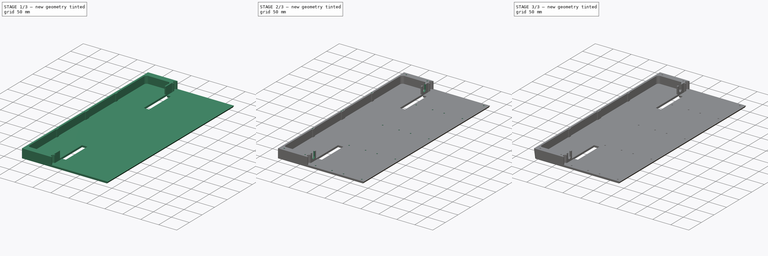
[diagram: build sequence overview — one tinted view per stage of 3, left to right]
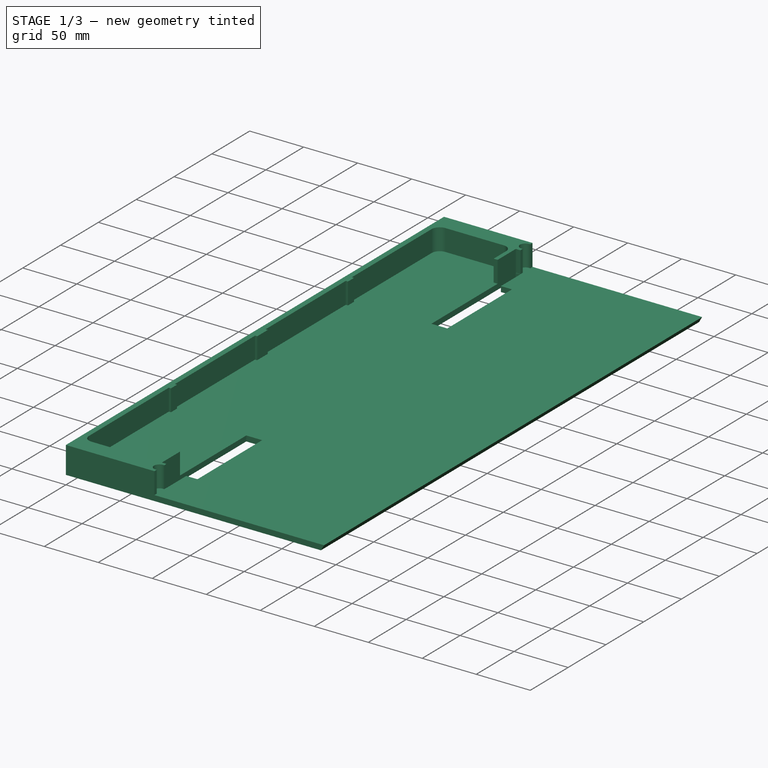
[diagram: stage 1 of 3 — iso view after this stage's code; geometry added in this stage tinted green]
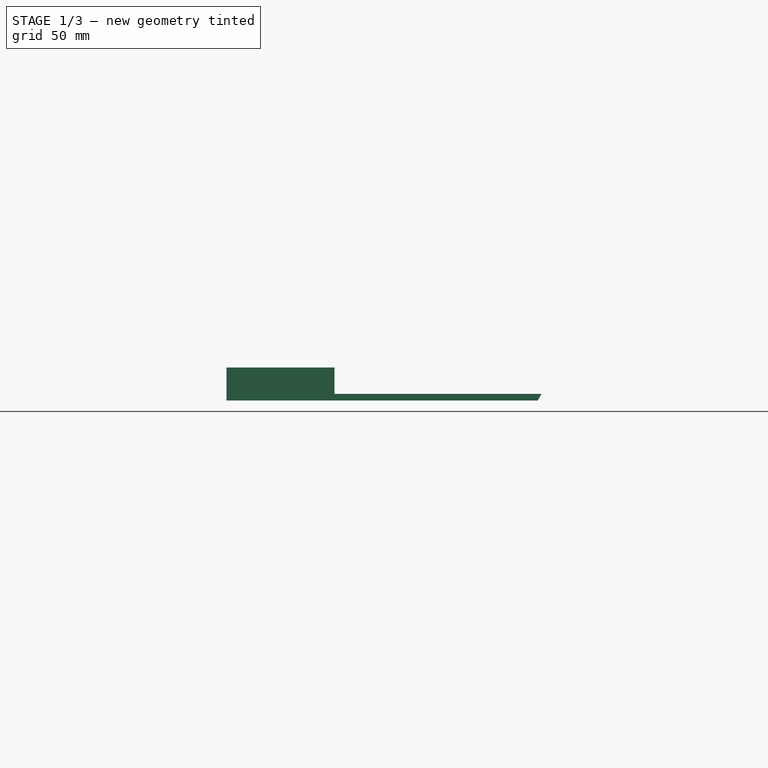
[diagram: stage 1 of 3 — front view after this stage's code; geometry added in this stage tinted green]
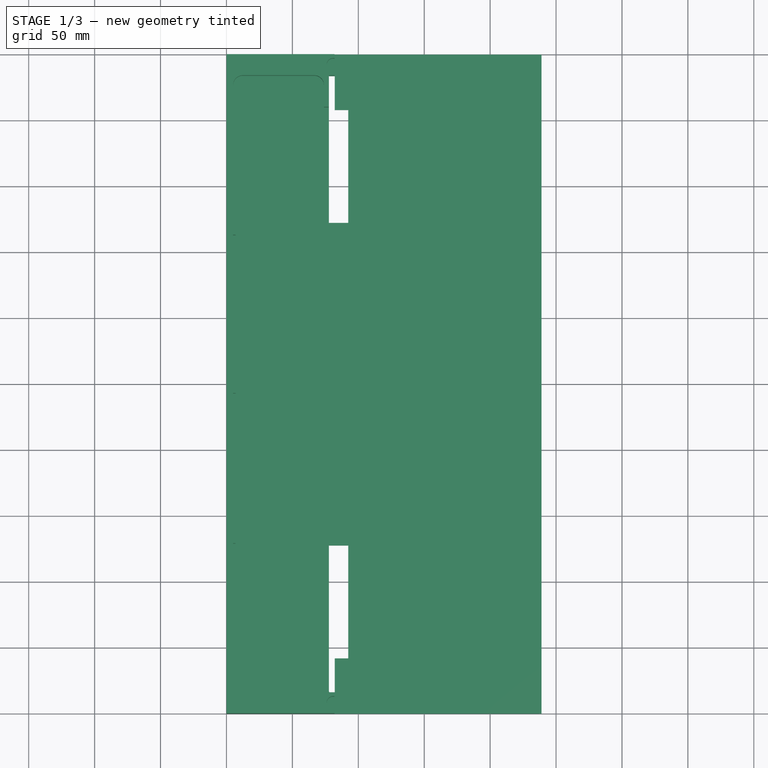
[diagram: stage 1 of 3 — top view after this stage's code; geometry added in this stage tinted green]
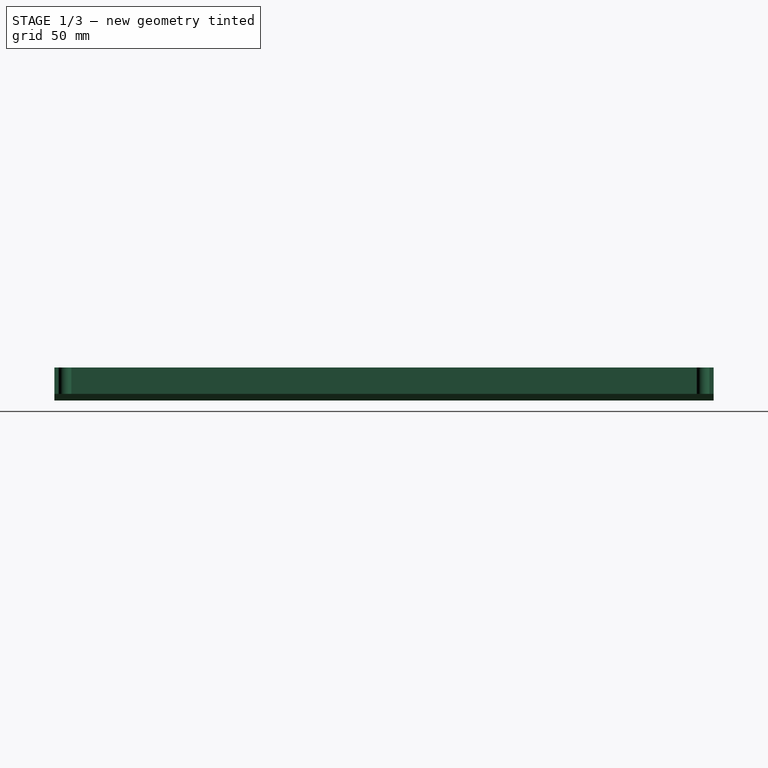
[diagram: stage 1 of 3 — right view after this stage's code; geometry added in this stage tinted green]
FCSTD DOCUMENT  (FreeCAD 0.21R33668 +7 (Git))
Label: back-base
License: All rights reserved
LicenseURL: http://en.wikipedia.org/wiki/All_rights_reserved
objects: Sketcher::SketchObject×8, PartDesign::Pocket×6, PartDesign::Plane×2, PartDesign::Pad×1, PartDesign::CoordinateSystem×1, PartDesign::Chamfer×1, PartDesign::Body×1, App::Part×1
note: 28 computed .brp shape members not serialized (recipe doc carries the construction recipe); baked Part::Feature solids carry a one-line shape summary decoded from their .brp
EXTERNAL_REF file=planB.FCStd obj=Spreadsheet

FEATURE [Sketcher::SketchObject] Sketch
  FullyConstrained = true
  MapMode = 5
  Placement = pos=(0,0,0) rot=(1,0,0;1.5708rad)
  Support = -> [XZ_Plane]
  expr: Constraints[13] = <<planB>>#<<data>>.base_t
  expr: Constraints[14] = <<planB>>#<<data>>.mungo_h
  expr: Constraints[15] = <<planB>>#<<data>>.mungo_d + <<planB>>#<<data>>.central_h + 2
  sketch-geometry (8):
    g0: LineSegment StartX=0 StartY=0 StartZ=0 EndX=0 EndY=25 EndZ=0
    g1: LineSegment StartX=0 StartY=25 StartZ=0 EndX=82 EndY=25 EndZ=0
    g2: LineSegment StartX=82 StartY=25 StartZ=0 EndX=82 EndY=5 EndZ=0
    g3: LineSegment StartX=82 StartY=5 StartZ=0 EndX=239 EndY=5 EndZ=0
    g4: LineSegment StartX=239 StartY=5 StartZ=0 EndX=239 EndY=0 EndZ=0
    g5: LineSegment StartX=239 StartY=0 StartZ=0 EndX=236.113 EndY=0 EndZ=0
    g6: LineSegment StartX=236.113 StartY=0 StartZ=0 EndX=0 EndY=0 EndZ=0
    g7: LineSegment StartX=236.113 StartY=0 StartZ=0 EndX=239 EndY=5 EndZ=0
  constraints (22):
    c: Coincident(g-1,g0)
    c: PointOnObject(g0,g-2)
    c: Coincident(g0,g1)
    c: Horizontal(g1)
    c: Coincident(g1,g2)
    c: Vertical(g2)
    c: Coincident(g2,g3)
    c: Horizontal(g3)
    c: Coincident(g3,g4)
    c: PointOnObject(g4,g-1)
    c: Coincident(g4,g5)
    c: Coincident(g6,g0)
    c: Vertical(g4)
    c: Distance(g4) = 5
    c: Distance(g2) = 20
    c: Distance(g1) = 82
    c: DistanceX(g4) = 239
    c: Coincident(g5,g6)
    c: Coincident(g7,g5)
    c: Coincident(g7,g3)
    c: Angle(g5,g7) = 1.0472
    c: Horizontal(g5)
FEATURE [PartDesign::Pad] Pad
  Direction = (0,-1,-2e-16)
  Length = 500
  Length2 = 10
  Placement = pos=(0,0,0) rot=(1,0,0;1.5708rad)
  Profile = -> Sketch
  ReferenceAxis = -> Sketch [N_Axis]
  Type = 0
  expr: Length = <<planB>>#<<data>>.case_w
FEATURE [PartDesign::CoordinateSystem] LCS_0
  AttacherType = Attacher::AttachEngine3D
  MapMode = 2
  Support = -> [X_Axis001]
FEATURE [PartDesign::Plane] DatumPlane
  AttachmentOffset = pos=(0,0,-5) rot=(0,0,1;0rad)
  Length = 338.458
  MapMode = 3
  Placement = pos=(0,-1.1e-15,5) rot=(1,0,0;3.14159rad)
  ResizeMode = 0
  Support = -> [XZ_Plane]
  Width = 599.458
  expr: .AttachmentOffset.Base.z = -<<planB>>#<<data>>.base_t
FEATURE [Sketcher::SketchObject] Sketch001
  FullyConstrained = false
  MapMode = 5
  Placement = pos=(0,-1.1e-15,5) rot=(1,0,0;3.14159rad)
  Support = -> [DatumPlane]
  expr: Constraints[18] = planB#<<data>>.clearance_m3
  expr: Constraints[3] = <<planB>>#<<data>>.central_h
  sketch-geometry (51):
    g0: LineSegment StartX=311.545 StartY=16 StartZ=0 EndX=311.545 EndY=484 EndZ=0
    g1: GeomPoint X=5 Y=250 Z=0
    g2: LineSegment StartX=5 StartY=257 StartZ=0 EndX=7 EndY=257 EndZ=0
    g3: LineSegment StartX=7 StartY=257 StartZ=0 EndX=7 EndY=243 EndZ=0
    g4: LineSegment StartX=7 StartY=243 StartZ=0 EndX=5 EndY=243 EndZ=0
    g5: LineSegment StartX=5 StartY=257 StartZ=0 EndX=5 EndY=243 EndZ=0
    g6: Circle CenterX=3.5 CenterY=253.5 CenterZ=0 NormalX=0 NormalY=0 NormalZ=1 AngleXU=0 Radius=1.8
    g7: LineSegment StartX=0 StartY=253.5 StartZ=0 EndX=3.5 EndY=253.5 EndZ=0
    g8: LineSegment StartX=3.5 StartY=253.5 StartZ=0 EndX=3.5 EndY=257 EndZ=0
    g9: LineSegment StartX=3.5 StartY=253.5 StartZ=0 EndX=7 EndY=253.5 EndZ=0
    g10: LineSegment StartX=5 StartY=250 StartZ=0 EndX=3.5 EndY=250 EndZ=0
    g11: LineSegment StartX=3.5 StartY=250 StartZ=0 EndX=3.5 EndY=253.5 EndZ=0
    g12: LineSegment StartX=74 StartY=40 StartZ=0 EndX=78 EndY=40 EndZ=0
    g13: LineSegment StartX=78 StartY=40 StartZ=0 EndX=78 EndY=16 EndZ=0
    g14: LineSegment StartX=78 StartY=16 StartZ=0 EndX=74 EndY=16 EndZ=0
    g15: LineSegment StartX=74 StartY=23.5 StartZ=0 EndX=74 EndY=40 EndZ=0
    g16: LineSegment StartX=12.5 StartY=16 StartZ=0 EndX=66.5 EndY=16 EndZ=0
    g17: LineSegment StartX=78 StartY=16 StartZ=0 EndX=311.545 EndY=16 EndZ=0
    g18: LineSegment StartX=74 StartY=476.5 StartZ=0 EndX=74 EndY=460 EndZ=0
    g19: LineSegment StartX=74 StartY=460 StartZ=0 EndX=78 EndY=460 EndZ=0
    g20: LineSegment StartX=78 StartY=460 StartZ=0 EndX=78 EndY=484 EndZ=0
    g21: LineSegment StartX=66.5 StartY=484 StartZ=0 EndX=12.5 EndY=484 EndZ=0
    g22: LineSegment StartX=311.545 StartY=484 StartZ=0 EndX=78 EndY=484 EndZ=0
    g23: LineSegment StartX=78 StartY=484 StartZ=0 EndX=74 EndY=484 EndZ=0
    g24: GeomPoint X=5 Y=367 Z=0
    g25: LineSegment StartX=5 StartY=476.5 StartZ=0 EndX=5 EndY=371 EndZ=0
    g26: LineSegment StartX=5 StartY=371 StartZ=0 EndX=5 EndY=363 EndZ=0
    g27: LineSegment StartX=5 StartY=363 StartZ=0 EndX=5 EndY=257 EndZ=0
    g28: Circle CenterX=3.5 CenterY=367 CenterZ=0 NormalX=0 NormalY=0 NormalZ=1 AngleXU=0 Radius=1.8
    g29: LineSegment StartX=5 StartY=367 StartZ=0 EndX=3.5 EndY=367 EndZ=0
    g30: LineSegment StartX=5 StartY=371 StartZ=0 EndX=7 EndY=371 EndZ=0
    g31: LineSegment StartX=7 StartY=371 StartZ=0 EndX=7 EndY=363 EndZ=0
    g32: LineSegment StartX=7 StartY=363 StartZ=0 EndX=5 EndY=363 EndZ=0
    g33: LineSegment StartX=5 StartY=129 StartZ=0 EndX=5 EndY=23.5 EndZ=0
    g34: LineSegment StartX=5 StartY=243 StartZ=0 EndX=5 EndY=137 EndZ=0
    g35: LineSegment StartX=5 StartY=137 StartZ=0 EndX=5 EndY=129 EndZ=0
    g36: LineSegment StartX=5 StartY=137 StartZ=0 EndX=7 EndY=137 EndZ=0
    g37: LineSegment StartX=7 StartY=137 StartZ=0 EndX=7 EndY=129 EndZ=0
    g38: LineSegment StartX=7 StartY=129 StartZ=0 EndX=5 EndY=129 EndZ=0
    g39: GeomPoint X=5 Y=133 Z=0
    g40: ArcOfCircle CenterX=12.5 CenterY=476.5 CenterZ=0 NormalX=0 NormalY=0 NormalZ=1 AngleXU=0 Radius=7.5 StartAngle=1.5708 EndAngle=3.14159
    g41: GeomPoint X=5 Y=484 Z=0
    g42: ArcOfCircle CenterX=12.5 CenterY=23.5 CenterZ=0 NormalX=0 NormalY=0 NormalZ=1 AngleXU=0 Radius=7.5 StartAngle=3.14159 EndAngle=4.71239
    g43: GeomPoint X=5 Y=16 Z=0
    g44: ArcOfCircle CenterX=66.5 CenterY=23.5 CenterZ=0 NormalX=0 NormalY=0 NormalZ=1 AngleXU=0 Radius=7.5 StartAngle=4.71239 EndAngle=6.28319
    g45: GeomPoint X=74 Y=16 Z=0
    g46: ArcOfCircle CenterX=66.5 CenterY=476.5 CenterZ=0 NormalX=0 NormalY=0 NormalZ=1 AngleXU=0 Radius=7.5 StartAngle=1.4e-15 EndAngle=1.5708
    g47: GeomPoint X=74 Y=484 Z=0
    g48: Circle CenterX=81 CenterY=8 CenterZ=0 NormalX=0 NormalY=0 NormalZ=1 AngleXU=0 Radius=5
    g49: LineSegment StartX=81 StartY=8 StartZ=0 EndX=81 EndY=492 EndZ=0
    g50: Circle CenterX=81 CenterY=492 CenterZ=0 NormalX=0 NormalY=0 NormalZ=1 AngleXU=0 Radius=5
  constraints (125):
    c: Coincident(g17,g0)
    c: Coincident(g0,g22)
    c: Vertical(g0)
    c: DistanceX(g43) = 5
    c: DistanceY(g43) = 16
    c: Symmetric(g43,g41,g1)
    c: Horizontal(g2)
    c: Coincident(g2,g3)
    c: Vertical(g3)
    c: Coincident(g3,g4)
    c: Horizontal(g4)
    c: Coincident(g27,g5)
    c: Distance(g41,g43) = 468
    c: Coincident(g5,g34)
    c: Vertical(g5)
    c: Coincident(g5,g4)
    c: Coincident(g27,g2)
    c: Symmetric(g4,g2,g1)
    c: Diameter(g6) = 3.6
    c: PointOnObject(g7,g-2)
    c: Coincident(g7,g6)
    c: Horizontal(g7)
    c: Coincident(g8,g6)
    c: PointOnObject(g8,g2)
    c: Vertical(g8)
    c: Coincident(g9,g6)
    c: Horizontal(g9)
    c: PointOnObject(g9,g3)
    c: Equal(g9,g8)
    c: Equal(g8,g7)
    c: Coincident(g10,g1)
    c: Horizontal(g10)
    c: Coincident(g11,g10)
    c: Coincident(g11,g6)
    c: Vertical(g11)
    c: Equal(g8,g11)
    c: DistanceX(g2) = 7
    c: Coincident(g12,g13)
    c: Coincident(g13,g14)
    c: Coincident(g14,g45)
    c: Coincident(g15,g12)
    c: Horizontal(g12)
    c: Horizontal(g14)
    c: Vertical(g13)
    c: Vertical(g15)
    c: Horizontal(g16)
    c: Horizontal(g17)
    c: DistanceX(g12) = 78
    c: DistanceY(g12) = 40
    c: DistanceX(g45) = 74
    c: Vertical(g18)
    c: Coincident(g18,g19)
    c: Horizontal(g19)
    c: Coincident(g19,g20)
    c: Vertical(g20)
    c: Coincident(g23,g47)
    c: Horizontal(g21)
    c: Coincident(g22,g23)
    c: Horizontal(g22)
    c: Horizontal(g23)
    c: Coincident(g20,g22)
    c: PointOnObject(g19,g13)
    c: PointOnObject(g18,g15)
    c: Equal(g20,g13)
    c: Symmetric(g41,g1,g24)
    c: Coincident(g25,g26)
    c: Vertical(g25)
    c: Coincident(g26,g27)
    c: Vertical(g26)
    c: Coincident(g29,g28)
    c: Horizontal(g29)
    c: DistanceX(g28) = 3.5
    c: Equal(g28,g6)
    c: Coincident(g25,g30)
    c: Horizontal(g30)
    c: Coincident(g30,g31)
    c: Vertical(g31)
    c: Coincident(g31,g32)
    c: Coincident(g32,g27)
    c: Horizontal(g32)
    c: DistanceX(g31) = 7
    c: Symmetric(g27,g25,g24)
    c: DistanceY(g31,g31) = 8
    c: Coincident(g35,g33)
    c: Coincident(g34,g35)
    c: Coincident(g34,g36)
    c: Coincident(g36,g37)
    c: Vertical(g37)
    c: Coincident(g37,g38)
    c: Coincident(g38,g33)
    c: Horizontal(g38)
    c: Horizontal(g36)
    c: Vertical(g35)
    c: PointOnObject(g36,g3)
    c: Symmetric(g33,g34,g39)
    c: Symmetric(g1,g43,g39)
    c: DistanceY(g37,g37) = 8
    c: PointOnObject(g41,g21)
    c: PointOnObject(g41,g25)
    c: Tangent(g21,g40) = -1.5708
    c: Tangent(g25,g40) = -1.5708
    c: PointOnObject(g43,g16)
    c: PointOnObject(g43,g33)
    c: Tangent(g16,g42) = -1.5708
    c: Tangent(g33,g42) = -1.5708
    c: PointOnObject(g45,g16)
    c: PointOnObject(g45,g15)
    c: Tangent(g16,g44) = -1.5708
    c: Tangent(g15,g44) = -1.5708
    c: PointOnObject(g47,g21)
    c: PointOnObject(g47,g18)
    c: Tangent(g21,g46) = -1.5708
    c: Tangent(g18,g46) = 1.5708
    c: Diameter(g40) = 15
    c: Equal(g46,g40)
    c: Equal(g40,g42)
    c: Equal(g42,g44)
    c: DistanceY(g48) = 8
    c: Diameter(g48) = 10
    c: Distance(g48,g13) = 3
    c: Coincident(g49,g48)
    c: Vertical(g49)
    c: Coincident(g50,g49)
    c: Equal(g50,g48)
    c: DistanceY(g49,g49) = 484
FEATURE [PartDesign::Pocket] Pocket
  BaseFeature = -> Pad
  Direction = (0,-2e-16,1)
  Length = 5
  Length2 = 5
  Placement = pos=(0,0,0) rot=(1,0,0;1.5708rad)
  Profile = -> Sketch001
  ReferenceAxis = -> Sketch001 [N_Axis]
  Type = 1
FEATURE [Sketcher::SketchObject] Sketch002
  FullyConstrained = false
  MapMode = 5
  Support = -> [XY_Plane]
  sketch-geometry (15):
    g0: LineSegment StartX=92.4 StartY=-127.6 StartZ=0 EndX=77.7 EndY=-127.6 EndZ=0
    g1: LineSegment StartX=77.7 StartY=-127.6 StartZ=0 EndX=77.7 EndY=-16.3 EndZ=0
    g2: LineSegment StartX=92.4 StartY=-16.3 StartZ=0 EndX=92.4 EndY=-42 EndZ=0
    g3: LineSegment StartX=92.4 StartY=-42 StartZ=0 EndX=92.4 EndY=-127.6 EndZ=0
    g4: LineSegment StartX=77.7 StartY=-16.3 StartZ=0 EndX=82.1 EndY=-16.3 EndZ=0
    g5: LineSegment StartX=82.1 StartY=-16.3 StartZ=0 EndX=92.4 EndY=-16.3 EndZ=0
    g6: LineSegment StartX=92.4 StartY=-42 StartZ=0 EndX=82.1 EndY=-42 EndZ=0
    g7: LineSegment StartX=82.1 StartY=-42 StartZ=0 EndX=82.1 EndY=-16.3 EndZ=0
    g8: LineSegment StartX=0 StartY=-500 StartZ=0 EndX=173.261 EndY=-500 EndZ=0
    g9: LineSegment StartX=77.7 StartY=-483.7 StartZ=0 EndX=77.7 EndY=-372.4 EndZ=0
    g10: LineSegment StartX=77.7 StartY=-372.4 StartZ=0 EndX=92.4 EndY=-372.4 EndZ=0
    g11: LineSegment StartX=92.4 StartY=-372.4 StartZ=0 EndX=92.4 EndY=-458 EndZ=0
    g12: LineSegment StartX=92.4 StartY=-458 StartZ=0 EndX=82.1 EndY=-458 EndZ=0
    g13: LineSegment StartX=82.1 StartY=-458 StartZ=0 EndX=82.1 EndY=-483.7 EndZ=0
    g14: LineSegment StartX=82.1 StartY=-483.7 StartZ=0 EndX=77.7 EndY=-483.7 EndZ=0
  constraints (44):
    c: Coincident(g5,g2)
    c: Coincident(g3,g0)
    c: Coincident(g0,g1)
    c: Coincident(g1,g4)
    c: Horizontal(g0)
    c: Vertical(g1)
    c: DistanceX(g4) = 77.7
    c: DistanceY(g4) = -16.3
    c: DistanceX(g3) = 92.4
    c: DistanceY(g3) = -127.6
    c: Coincident(g2,g3)
    c: Vertical(g2)
    c: Vertical(g3)
    c: Coincident(g4,g5)
    c: Horizontal(g4)
    c: Horizontal(g5)
    c: Horizontal(g6)
    c: Coincident(g6,g7)
    c: Vertical(g7)
    c: Coincident(g6,g2)
    c: Coincident(g7,g4)
    c: Distance(g4) = 4.4
    c: DistanceY(g6) = -42
    c: PointOnObject(g8,g-2)
    c: Horizontal(g8)
    c: DistanceY(g8) = -500
    c: Vertical(g9)
    c: Coincident(g9,g10)
    c: Horizontal(g10)
    c: Coincident(g10,g11)
    c: Vertical(g11)
    c: Coincident(g11,g12)
    c: Horizontal(g12)
    c: Coincident(g12,g13)
    c: Vertical(g13)
    c: Coincident(g13,g14)
    c: Coincident(g14,g9)
    c: PointOnObject(g9,g1)
    c: PointOnObject(g10,g3)
    c: Equal(g2,g13)
    c: Horizontal(g14)
    c: Equal(g4,g14)
    c: Equal(g1,g9)
    c: Distance(g9,g8) = 16.3
FEATURE [PartDesign::Pocket] Pocket001
  BaseFeature = -> Pocket
  Direction = (0,0,-1)
  Length = 5
  Length2 = 5
  Placement = pos=(0,0,0) rot=(1,0,0;1.5708rad)
  Profile = -> Sketch002
  ReferenceAxis = -> Sketch002 [N_Axis]
  Reversed = true
  Type = 1
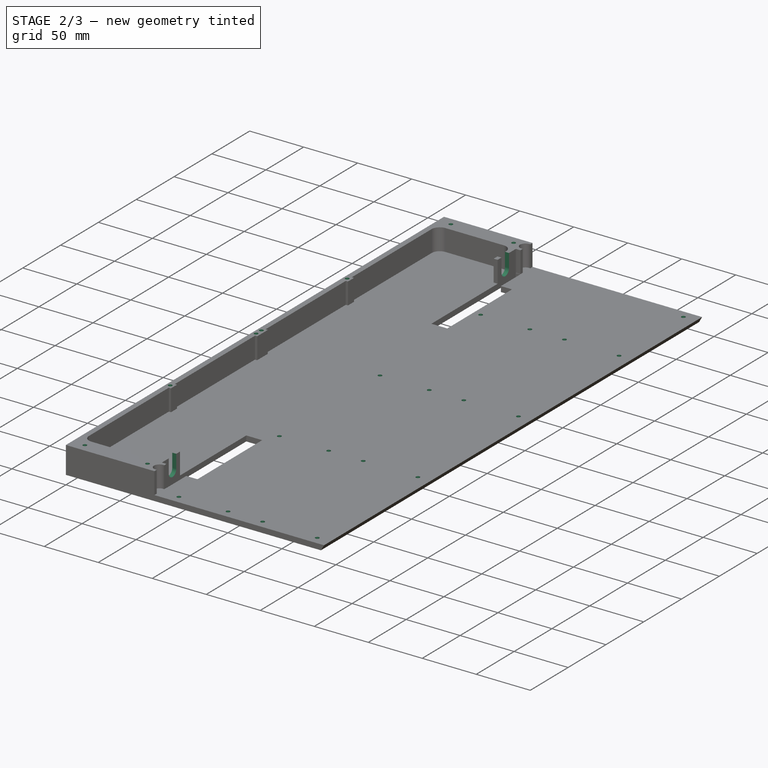
[diagram: stage 2 of 3 — iso view after this stage's code; geometry added in this stage tinted green]
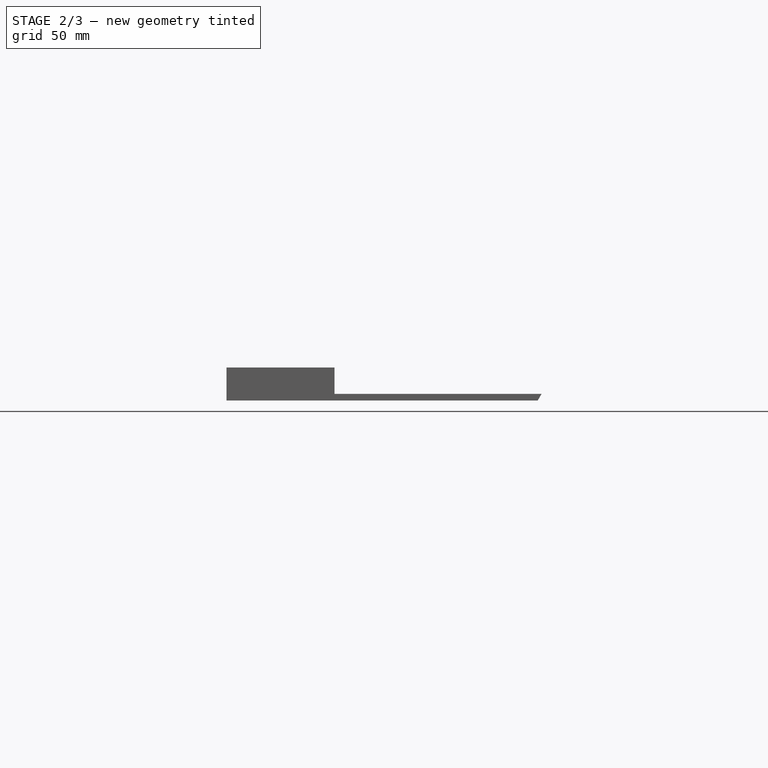
[diagram: stage 2 of 3 — front view after this stage's code; geometry added in this stage tinted green]
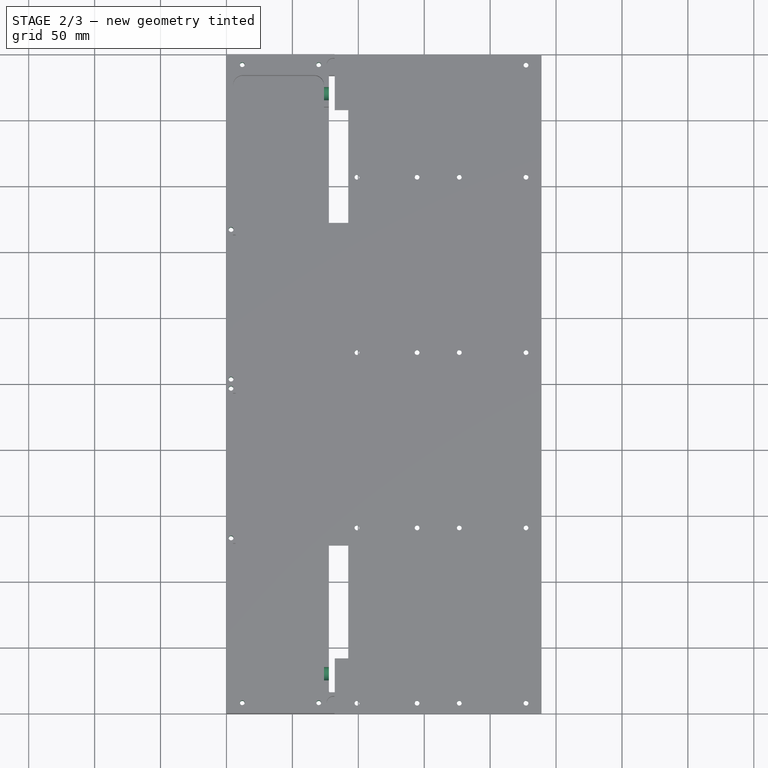
[diagram: stage 2 of 3 — top view after this stage's code; geometry added in this stage tinted green]
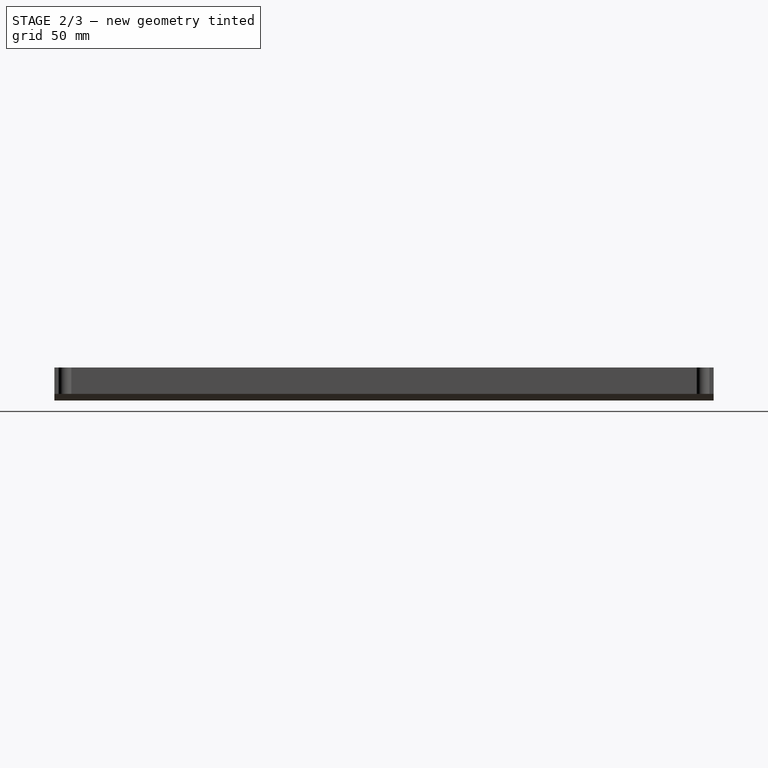
[diagram: stage 2 of 3 — right view after this stage's code; geometry added in this stage tinted green]
FEATURE [Sketcher::SketchObject] Sketch003
  FullyConstrained = true
  MapMode = 5
  Support = -> [XY_Plane]
  expr: Constraints[1] = planB#<<data>>.clearance_m3
  expr: Constraints[96] = planB#<<data>>.clearance_m3
  sketch-geometry (42):
    g0: Circle CenterX=3.5 CenterY=-246.5 CenterZ=0 NormalX=0 NormalY=0 NormalZ=1 AngleXU=0 Radius=1.8
    g1: Circle CenterX=3.5 CenterY=-253.5 CenterZ=0 NormalX=0 NormalY=0 NormalZ=1 AngleXU=0 Radius=1.8
    g2: LineSegment StartX=3.5 StartY=-246.5 StartZ=0 EndX=3.5 EndY=-253.5 EndZ=0
    g3: GeomPoint X=3.5 Y=-250 Z=0
    g4: LineSegment StartX=227.2 StartY=-93 StartZ=0 EndX=227.2 EndY=-492 EndZ=0
    g5: LineSegment StartX=227.2 StartY=-93 StartZ=0 EndX=99 EndY=-93 EndZ=0
    g6: LineSegment StartX=99 StartY=-93 StartZ=0 EndX=99 EndY=-492 EndZ=0
    g7: LineSegment StartX=176.6 StartY=-93 StartZ=0 EndX=176.6 EndY=-492 EndZ=0
    g8: LineSegment StartX=144.6 StartY=-93 StartZ=0 EndX=144.6 EndY=-492 EndZ=0
    g9: LineSegment StartX=99 StartY=-492 StartZ=0 EndX=227.2 EndY=-492 EndZ=0
    g10: LineSegment StartX=227.2 StartY=-226 StartZ=0 EndX=99 EndY=-226 EndZ=0
    g11: LineSegment StartX=99 StartY=-359 StartZ=0 EndX=227.2 EndY=-359 EndZ=0
    g12: LineSegment StartX=99 StartY=-492 StartZ=0 EndX=12 EndY=-492 EndZ=0
    g13: LineSegment StartX=70 StartY=-492 StartZ=0 EndX=70 EndY=-8 EndZ=0
    g14: LineSegment StartX=227.2 StartY=-93 StartZ=0 EndX=227.2 EndY=-8 EndZ=0
    g15: LineSegment StartX=227.2 StartY=-8 StartZ=0 EndX=12 EndY=-8 EndZ=0
    g16: LineSegment StartX=12 StartY=-8 StartZ=0 EndX=12 EndY=-492 EndZ=0
    g17: Circle CenterX=227.2 CenterY=-492 CenterZ=0 NormalX=0 NormalY=0 NormalZ=1 AngleXU=0 Radius=1.8
    g18: Circle CenterX=176.6 CenterY=-492 CenterZ=0 NormalX=0 NormalY=0 NormalZ=1 AngleXU=0 Radius=1.8
    g19: Circle CenterX=144.6 CenterY=-492 CenterZ=0 NormalX=0 NormalY=0 NormalZ=1 AngleXU=0 Radius=1.8
    g20: Circle CenterX=99 CenterY=-492 CenterZ=0 NormalX=0 NormalY=0 NormalZ=1 AngleXU=0 Radius=1.8
    g21: Circle CenterX=70 CenterY=-492 CenterZ=0 NormalX=0 NormalY=0 NormalZ=1 AngleXU=0 Radius=1.8
    g22: Circle CenterX=12 CenterY=-492 CenterZ=0 NormalX=0 NormalY=0 NormalZ=1 AngleXU=0 Radius=1.8
    g23: Circle CenterX=99 CenterY=-359 CenterZ=0 NormalX=0 NormalY=0 NormalZ=1 AngleXU=0 Radius=1.8
    g24: Circle CenterX=144.6 CenterY=-359 CenterZ=0 NormalX=0 NormalY=0 NormalZ=1 AngleXU=0 Radius=1.8
    g25: Circle CenterX=176.6 CenterY=-359 CenterZ=0 NormalX=0 NormalY=0 NormalZ=1 AngleXU=0 Radius=1.8
    g26: Circle CenterX=227.2 CenterY=-359 CenterZ=0 NormalX=0 NormalY=0 NormalZ=1 AngleXU=0 Radius=1.8
    g27: Circle CenterX=227.2 CenterY=-226 CenterZ=0 NormalX=0 NormalY=0 NormalZ=1 AngleXU=0 Radius=1.8
    g28: Circle CenterX=99 CenterY=-226 CenterZ=0 NormalX=0 NormalY=0 NormalZ=1 AngleXU=0 Radius=1.8
    g29: Circle CenterX=144.6 CenterY=-226 CenterZ=0 NormalX=0 NormalY=0 NormalZ=1 AngleXU=0 Radius=1.8
    g30: Circle CenterX=176.6 CenterY=-226 CenterZ=0 NormalX=0 NormalY=0 NormalZ=1 AngleXU=0 Radius=1.8
    g31: Circle CenterX=176.6 CenterY=-93 CenterZ=0 NormalX=0 NormalY=0 NormalZ=1 AngleXU=0 Radius=1.8
    g32: Circle CenterX=144.6 CenterY=-93 CenterZ=0 NormalX=0 NormalY=0 NormalZ=1 AngleXU=0 Radius=1.8
    g33: Circle CenterX=99 CenterY=-93 CenterZ=0 NormalX=0 NormalY=0 NormalZ=1 AngleXU=0 Radius=1.8
    g34: Circle CenterX=227.2 CenterY=-93 CenterZ=0 NormalX=0 NormalY=0 NormalZ=1 AngleXU=0 Radius=1.8
    g35: Circle CenterX=227.2 CenterY=-8 CenterZ=0 NormalX=0 NormalY=0 NormalZ=1 AngleXU=0 Radius=1.8
    g36: Circle CenterX=70 CenterY=-8 CenterZ=0 NormalX=0 NormalY=0 NormalZ=1 AngleXU=0 Radius=1.8
    g37: Circle CenterX=12 CenterY=-8 CenterZ=0 NormalX=0 NormalY=0 NormalZ=1 AngleXU=0 Radius=1.8
    g38: LineSegment StartX=3.5 StartY=-253.5 StartZ=0 EndX=3.5 EndY=-367 EndZ=0
    g39: LineSegment StartX=3.5 StartY=-246.5 StartZ=0 EndX=3.5 EndY=-133 EndZ=0
    g40: Circle CenterX=3.5 CenterY=-133 CenterZ=0 NormalX=0 NormalY=0 NormalZ=1 AngleXU=0 Radius=1.8
    g41: Circle CenterX=3.5 CenterY=-367 CenterZ=0 NormalX=0 NormalY=0 NormalZ=1 AngleXU=0 Radius=1.8
  constraints (108):
    c: Equal(g1,g0)
    c: Diameter(g0) = 3.6
    c: Coincident(g2,g0)
    c: Coincident(g2,g1)
    c: Vertical(g2)
    c: Symmetric(g1,g0,g3)
    c: DistanceX(g3) = 3.5
    c: DistanceY(g3) = -250
    c: Vertical(g4)
    c: Coincident(g5,g4)
    c: Horizontal(g5)
    c: Coincident(g6,g5)
    c: Vertical(g6)
    c: PointOnObject(g7,g5)
    c: Vertical(g7)
    c: PointOnObject(g8,g5)
    c: Vertical(g8)
    c: Coincident(g9,g6)
    c: Coincident(g9,g4)
    c: Horizontal(g9)
    c: PointOnObject(g7,g9)
    c: PointOnObject(g8,g9)
    c: PointOnObject(g10,g4)
    c: PointOnObject(g10,g6)
    c: Horizontal(g10)
    c: PointOnObject(g11,g6)
    c: PointOnObject(g11,g4)
    c: Horizontal(g11)
    c: Distance(g11,g9) = 133
    c: Distance(g11,g10) = 133
    c: Distance(g10,g5) = 133
    c: DistanceX(g4) = 227.2
    c: DistanceY(g4) = -93
    c: DistanceX(g7) = 176.6
    c: DistanceX(g8) = 144.6
    c: DistanceX(g5) = 99
    c: Horizontal(g12)
    c: PointOnObject(g13,g12)
    c: Vertical(g13)
    c: Vertical(g14)
    c: Coincident(g4,g14)
    c: Horizontal(g15)
    c: Vertical(g16)
    c: Coincident(g12,g16)
    c: Coincident(g15,g16)
    c: PointOnObject(g13,g15)
    c: Coincident(g15,g14)
    c: DistanceY(g14) = -8
    c: DistanceX(g15) = 12
    c: DistanceX(g13) = 70
    c: Coincident(g12,g6)
    c: Coincident(g17,g4)
    c: Coincident(g18,g7)
    c: Coincident(g19,g8)
    c: Coincident(g20,g6)
    c: Coincident(g21,g13)
    c: Coincident(g22,g12)
    c: Coincident(g23,g11)
    c: PointOnObject(g24,g8)
    c: PointOnObject(g25,g7)
    c: Coincident(g26,g11)
    c: Coincident(g27,g10)
    c: Coincident(g28,g10)
    c: PointOnObject(g29,g8)
    c: PointOnObject(g30,g7)
    c: Coincident(g31,g7)
    c: Coincident(g32,g8)
    c: Coincident(g33,g5)
    c: Coincident(g34,g4)
    c: Coincident(g35,g14)
    c: Coincident(g36,g13)
    c: Coincident(g37,g15)
    c: Equal(g35,g36)
    c: Equal(g36,g37)
    c: Equal(g37,g33)
    c: Equal(g33,g32)
    c: Equal(g32,g31)
    c: Equal(g31,g34)
    c: Equal(g34,g27)
    c: Equal(g27,g28)
    c: Equal(g28,g29)
    c: Equal(g29,g30)
    c: Equal(g30,g26)
    c: Equal(g26,g25)
    c: Equal(g25,g24)
    c: Equal(g24,g23)
    c: Equal(g23,g17)
    c: Equal(g17,g18)
    c: Equal(g18,g19)
    c: Equal(g19,g20)
    c: Equal(g20,g21)
    c: Equal(g21,g22)
    c: PointOnObject(g25,g11)
    c: PointOnObject(g24,g11)
    c: PointOnObject(g29,g10)
    c: PointOnObject(g30,g10)
    c: Diameter(g36) = 3.6
    c: Coincident(g38,g1)
    c: Vertical(g38)
    c: Coincident(g39,g0)
    c: Vertical(g39)
    c: Coincident(g40,g39)
    c: Coincident(g41,g38)
    c: Equal(g41,g1)
    c: Equal(g0,g40)
    c: Equal(g39,g38)
    c: DistanceY(g40) = -133
    c: DistanceY(g2,g2) = 7
FEATURE [PartDesign::Pocket] Pocket002
  BaseFeature = -> Pocket001
  Direction = (0,0,-1)
  Length = 63
  Length2 = 5
  Midplane = true
  Placement = pos=(0,0,0) rot=(1,0,0;1.5708rad)
  Profile = -> Sketch003
  ReferenceAxis = -> Sketch003 [N_Axis]
  Type = 0
FEATURE [Sketcher::SketchObject] Sketch004
  FullyConstrained = false
  MapMode = 5
  Support = -> [XY_Plane]
  expr: Constraints[1] = planB#<<data>>.clearance_m3
  sketch-geometry (10):
    g0: Circle CenterX=3.5 CenterY=-246.5 CenterZ=0 NormalX=0 NormalY=0 NormalZ=1 AngleXU=0 Radius=1.8
    g1: Circle CenterX=3.5 CenterY=-253.5 CenterZ=0 NormalX=0 NormalY=0 NormalZ=1 AngleXU=0 Radius=1.8
    g2: LineSegment StartX=3.5 StartY=-246.5 StartZ=0 EndX=3.5 EndY=-253.5 EndZ=0
    g3: GeomPoint X=3.5 Y=-250 Z=0
    g4: ArcOfCircle CenterX=3.5 CenterY=-246.5 CenterZ=0 NormalX=0 NormalY=0 NormalZ=1 AngleXU=0 Radius=3.5 StartAngle=3.1e-15 EndAngle=1.57652
    g5: ArcOfCircle CenterX=3.5 CenterY=-253.5 CenterZ=0 NormalX=0 NormalY=0 NormalZ=1 AngleXU=0 Radius=3.5 StartAngle=4.72257 EndAngle=6.28319
    g6: LineSegment StartX=7 StartY=-253.5 StartZ=0 EndX=7 EndY=-246.5 EndZ=0
    g7: LineSegment StartX=3.47998 StartY=-243 StartZ=0 EndX=0 EndY=-243 EndZ=0
    g8: LineSegment StartX=3.53564 StartY=-257 StartZ=0 EndX=0 EndY=-257 EndZ=0
    g9: LineSegment StartX=0 StartY=-243 StartZ=0 EndX=0 EndY=-257 EndZ=0
  constraints (23):
    c: Equal(g1,g0)
    c: Diameter(g0) = 3.6
    c: Coincident(g2,g0)
    c: Coincident(g2,g1)
    c: Vertical(g2)
    c: Symmetric(g1,g0,g3)
    c: DistanceX(g3) = 3.5
    c: DistanceY(g3) = -250
    c: Coincident(g4,g0)
    c: Coincident(g5,g1)
    c: Vertical(g6)
    c: Coincident(g7,g4)
    c: PointOnObject(g7,g-2)
    c: Horizontal(g7)
    c: Coincident(g8,g5)
    c: PointOnObject(g8,g-2)
    c: Horizontal(g8)
    c: Tangent(g6,g5) = -1.5708
    c: Tangent(g6,g4) = -1.5708
    c: DistanceY(g5,g4) = 7
    c: Coincident(g9,g7)
    c: Coincident(g9,g8)
    c: Diameter(g4) = 7
FEATURE [Sketcher::SketchObject] Sketch005
  FullyConstrained = false
  MapMode = 5
  Support = -> [XY_Plane]
  expr: Constraints[1] = planB#<<data>>.clearance_m3
  sketch-geometry (50):
    g0: Circle CenterX=3.5 CenterY=-246.5 CenterZ=0 NormalX=0 NormalY=0 NormalZ=1 AngleXU=0 Radius=1.8
    g1: Circle CenterX=3.5 CenterY=-253.5 CenterZ=0 NormalX=0 NormalY=0 NormalZ=1 AngleXU=0 Radius=1.8
    g2: LineSegment StartX=3.5 StartY=-246.5 StartZ=0 EndX=3.5 EndY=-253.5 EndZ=0
    g3: GeomPoint X=3.5 Y=-250 Z=0
    g4: LineSegment StartX=227.2 StartY=-93 StartZ=0 EndX=227.2 EndY=-492 EndZ=0
    g5: LineSegment StartX=227.2 StartY=-93 StartZ=0 EndX=99 EndY=-93 EndZ=0
    g6: LineSegment StartX=99 StartY=-93 StartZ=0 EndX=99 EndY=-492 EndZ=0
    g7: LineSegment StartX=176.6 StartY=-93 StartZ=0 EndX=176.6 EndY=-492 EndZ=0
    g8: LineSegment StartX=144.6 StartY=-93 StartZ=0 EndX=144.6 EndY=-492 EndZ=0
    g9: LineSegment StartX=99 StartY=-492 StartZ=0 EndX=227.2 EndY=-492 EndZ=0
    g10: LineSegment StartX=227.2 StartY=-226 StartZ=0 EndX=99 EndY=-226 EndZ=0
    g11: LineSegment StartX=99 StartY=-359 StartZ=0 EndX=227.2 EndY=-359 EndZ=0
    g12: LineSegment StartX=99 StartY=-492 StartZ=0 EndX=12 EndY=-492 EndZ=0
    g13: LineSegment StartX=70 StartY=-492 StartZ=0 EndX=70 EndY=-8 EndZ=0
    g14: LineSegment StartX=227.2 StartY=-93 StartZ=0 EndX=227.2 EndY=-8 EndZ=0
    g15: LineSegment StartX=227.2 StartY=-8 StartZ=0 EndX=12 EndY=-8 EndZ=0
    g16: LineSegment StartX=12 StartY=-8 StartZ=0 EndX=12 EndY=-492 EndZ=0
    g17: Circle CenterX=227.2 CenterY=-492 CenterZ=0 NormalX=0 NormalY=0 NormalZ=1 AngleXU=0 Radius=4
    g18: Circle CenterX=176.6 CenterY=-492 CenterZ=0 NormalX=0 NormalY=0 NormalZ=1 AngleXU=0 Radius=4
    g19: Circle CenterX=144.6 CenterY=-492 CenterZ=0 NormalX=0 NormalY=0 NormalZ=1 AngleXU=0 Radius=4
    g20: Circle CenterX=99 CenterY=-492 CenterZ=0 NormalX=0 NormalY=0 NormalZ=1 AngleXU=0 Radius=4
    g21: Circle CenterX=70 CenterY=-492 CenterZ=0 NormalX=0 NormalY=0 NormalZ=1 AngleXU=0 Radius=4
    g22: Circle CenterX=12 CenterY=-492 CenterZ=0 NormalX=0 NormalY=0 NormalZ=1 AngleXU=0 Radius=4
    g23: Circle CenterX=99 CenterY=-359 CenterZ=0 NormalX=0 NormalY=0 NormalZ=1 AngleXU=0 Radius=4
    g24: Circle CenterX=144.6 CenterY=-359 CenterZ=0 NormalX=0 NormalY=0 NormalZ=1 AngleXU=0 Radius=4
    g25: Circle CenterX=176.6 CenterY=-359 CenterZ=0 NormalX=0 NormalY=0 NormalZ=1 AngleXU=0 Radius=4
    g26: Circle CenterX=227.2 CenterY=-359 CenterZ=0 NormalX=0 NormalY=0 NormalZ=1 AngleXU=0 Radius=4
    g27: Circle CenterX=227.2 CenterY=-226 CenterZ=0 NormalX=0 NormalY=0 NormalZ=1 AngleXU=0 Radius=4
    g28: Circle CenterX=99 CenterY=-226 CenterZ=0 NormalX=0 NormalY=0 NormalZ=1 AngleXU=0 Radius=4
    g29: Circle CenterX=144.6 CenterY=-226 CenterZ=0 NormalX=0 NormalY=0 NormalZ=1 AngleXU=0 Radius=4
    g30: Circle CenterX=176.6 CenterY=-226 CenterZ=0 NormalX=0 NormalY=0 NormalZ=1 AngleXU=0 Radius=4
    g31: Circle CenterX=176.6 CenterY=-93 CenterZ=0 NormalX=0 NormalY=0 NormalZ=1 AngleXU=0 Radius=4
    g32: Circle CenterX=144.6 CenterY=-93 CenterZ=0 NormalX=0 NormalY=0 NormalZ=1 AngleXU=0 Radius=4
    g33: Circle CenterX=99 CenterY=-93 CenterZ=0 NormalX=0 NormalY=0 NormalZ=1 AngleXU=0 Radius=4
    g34: Circle CenterX=227.2 CenterY=-93 CenterZ=0 NormalX=0 NormalY=0 NormalZ=1 AngleXU=0 Radius=4
    g35: Circle CenterX=227.2 CenterY=-8 CenterZ=0 NormalX=0 NormalY=0 NormalZ=1 AngleXU=0 Radius=4
    g36: Circle CenterX=70 CenterY=-8 CenterZ=0 NormalX=0 NormalY=0 NormalZ=1 AngleXU=0 Radius=4
    g37: Circle CenterX=12 CenterY=-8 CenterZ=0 NormalX=0 NormalY=0 NormalZ=1 AngleXU=0 Radius=4
    g38: LineSegment StartX=3.5 StartY=-253.5 StartZ=0 EndX=3.5 EndY=-367 EndZ=0
    g39: LineSegment StartX=3.5 StartY=-246.5 StartZ=0 EndX=3.5 EndY=-133 EndZ=0
    g40: Circle CenterX=3.5 CenterY=-133 CenterZ=0 NormalX=0 NormalY=0 NormalZ=1 AngleXU=0 Radius=4
    g41: Circle CenterX=3.5 CenterY=-367 CenterZ=0 NormalX=0 NormalY=0 NormalZ=1 AngleXU=0 Radius=4
    g42: ArcOfCircle CenterX=3.5 CenterY=-133 CenterZ=0 NormalX=0 NormalY=0 NormalZ=1 AngleXU=0 Radius=4 StartAngle=4.71239 EndAngle=7.85398
    g43: ArcOfCircle CenterX=-20.3762 CenterY=-133 CenterZ=0 NormalX=0 NormalY=0 NormalZ=1 AngleXU=0 Radius=4 StartAngle=1.5708 EndAngle=4.71239
    g44: LineSegment StartX=3.5 StartY=-129 StartZ=0 EndX=-20.3762 EndY=-129 EndZ=0
    g45: LineSegment StartX=-20.3762 StartY=-137 StartZ=0 EndX=3.5 EndY=-137 EndZ=0
    g46: ArcOfCircle CenterX=3.5 CenterY=-367 CenterZ=0 NormalX=0 NormalY=0 NormalZ=1 AngleXU=0 Radius=4 StartAngle=4.71239 EndAngle=7.85398
    g47: ArcOfCircle CenterX=-12.5759 CenterY=-367 CenterZ=0 NormalX=0 NormalY=0 NormalZ=1 AngleXU=0 Radius=4 StartAngle=1.5708 EndAngle=4.71239
    g48: LineSegment StartX=3.5 StartY=-363 StartZ=0 EndX=-12.5759 EndY=-363 EndZ=0
    g49: LineSegment StartX=-12.5759 StartY=-371 StartZ=0 EndX=3.5 EndY=-371 EndZ=0
  constraints (124):
    c: Equal(g1,g0)
    c: Diameter(g0) = 3.6
    c: Coincident(g2,g0)
    c: Coincident(g2,g1)
    c: Vertical(g2)
    c: Symmetric(g1,g0,g3)
    c: DistanceX(g3) = 3.5
    c: DistanceY(g3) = -250
    c: Vertical(g4)
    c: Coincident(g5,g4)
    c: Horizontal(g5)
    c: Coincident(g6,g5)
    c: Vertical(g6)
    c: PointOnObject(g7,g5)
    c: Vertical(g7)
    c: PointOnObject(g8,g5)
    c: Vertical(g8)
    c: Coincident(g9,g6)
    c: Coincident(g9,g4)
    c: Horizontal(g9)
    c: PointOnObject(g7,g9)
    c: PointOnObject(g8,g9)
    c: PointOnObject(g10,g4)
    c: PointOnObject(g10,g6)
    c: Horizontal(g10)
    c: PointOnObject(g11,g6)
    c: PointOnObject(g11,g4)
    c: Horizontal(g11)
    c: Distance(g11,g9) = 133
    c: Distance(g11,g10) = 133
    c: Distance(g10,g5) = 133
    c: DistanceX(g4) = 227.2
    c: DistanceY(g4) = -93
    c: DistanceX(g7) = 176.6
    c: DistanceX(g8) = 144.6
    c: DistanceX(g5) = 99
    c: Horizontal(g12)
    c: PointOnObject(g13,g12)
    c: Vertical(g13)
    c: Vertical(g14)
    c: Coincident(g4,g14)
    c: Horizontal(g15)
    c: Vertical(g16)
    c: Coincident(g12,g16)
    c: Coincident(g15,g16)
    c: PointOnObject(g13,g15)
    c: Coincident(g15,g14)
    c: DistanceY(g14) = -8
    c: DistanceX(g15) = 12
    c: DistanceX(g13) = 70
    c: Coincident(g12,g6)
    c: Coincident(g17,g4)
    c: Coincident(g18,g7)
    c: Coincident(g19,g8)
    c: Coincident(g20,g6)
    c: Coincident(g21,g13)
    c: Coincident(g22,g12)
    c: Coincident(g23,g11)
    c: PointOnObject(g24,g8)
    c: PointOnObject(g25,g7)
    c: Coincident(g26,g11)
    c: Coincident(g27,g10)
    c: Coincident(g28,g10)
    c: PointOnObject(g29,g8)
    c: PointOnObject(g30,g7)
    c: Coincident(g31,g7)
    c: Coincident(g32,g8)
    c: Coincident(g33,g5)
    c: Coincident(g34,g4)
    c: Coincident(g35,g14)
    c: Coincident(g36,g13)
    c: Coincident(g37,g15)
    c: Equal(g35,g36)
    c: Equal(g36,g37)
    c: Equal(g37,g33)
    c: Equal(g33,g32)
    c: Equal(g32,g31)
    c: Equal(g31,g34)
    c: Equal(g34,g27)
    c: Equal(g27,g28)
    c: Equal(g28,g29)
    c: Equal(g29,g30)
    c: Equal(g30,g26)
    c: Equal(g26,g25)
    c: Equal(g25,g24)
    c: Equal(g24,g23)
    c: Equal(g23,g17)
    c: Equal(g17,g18)
    c: Equal(g18,g19)
    c: Equal(g19,g20)
    c: Equal(g20,g21)
    c: Equal(g21,g22)
    c: PointOnObject(g25,g11)
    c: PointOnObject(g24,g11)
    c: PointOnObject(g29,g10)
    c: PointOnObject(g30,g10)
    c: Diameter(g37) = 8
    c: Coincident(g38,g1)
    c: Vertical(g38)
    c: Coincident(g39,g0)
    c: Vertical(g39)
    c: Coincident(g40,g39)
    c: Coincident(g41,g38)
    c: DistanceY(g1,g0) = 7
    c: Equal(g38,g39)
    c: DistanceY(g40) = -133
    c: Equal(g41,g23)
    c: Equal(g40,g41)
    c: Tangent(g42,g44) = -1.5708
    c: Tangent(g44,g43) = -1.5708
    c: Tangent(g43,g45) = -1.5708
    c: Tangent(g45,g42) = -1.5708
    c: Equal(g42,g43)
    c: Coincident(g42,g39)
    c: Horizontal(g44)
    c: Tangent(g46,g48) = -1.5708
    c: Tangent(g48,g47) = -1.5708
    c: Tangent(g47,g49) = -1.5708
    c: Tangent(g49,g46) = -1.5708
    c: Equal(g46,g47)
    c: Coincident(g46,g38)
    c: Horizontal(g48)
    c: Equal(g41,g46)
    c: Equal(g40,g42)
FEATURE [PartDesign::Plane] DatumPlane001
  AttachmentOffset = pos=(0,0,79) rot=(0,0,1;0rad)
  Length = 557.404
  MapMode = 5
  Placement = pos=(79,-1.75e-14,1.75e-14) rot=(0.57735,0.57735,0.57735;2.0944rad)
  ResizeMode = 0
  Support = -> [YZ_Plane]
  Width = 82.4037
FEATURE [Sketcher::SketchObject] Sketch006
  FullyConstrained = false
  MapMode = 5
  Placement = pos=(79,-1.75e-14,1.75e-14) rot=(0.57735,0.57735,0.57735;2.0944rad)
  Support = -> [DatumPlane001]
  sketch-geometry (9):
    g0: ArcOfCircle CenterX=-30 CenterY=12.5 CenterZ=0 NormalX=0 NormalY=0 NormalZ=1 AngleXU=0 Radius=5 StartAngle=3.14159 EndAngle=6.28319
    g1: LineSegment StartX=-35 StartY=12.5 StartZ=0 EndX=-35 EndY=55.1269 EndZ=0
    g2: LineSegment StartX=-35 StartY=55.1269 StartZ=0 EndX=-25 EndY=55.1269 EndZ=0
    g3: LineSegment StartX=-25 StartY=55.1269 StartZ=0 EndX=-25 EndY=12.5 EndZ=0
    g4: ArcOfCircle CenterX=-470 CenterY=12.5 CenterZ=0 NormalX=0 NormalY=0 NormalZ=1 AngleXU=0 Radius=5 StartAngle=3.14159 EndAngle=6.28319
    g5: ArcOfCircle CenterX=-470 CenterY=75.1601 CenterZ=0 NormalX=0 NormalY=0 NormalZ=1 AngleXU=0 Radius=5 StartAngle=0 EndAngle=3.14159
    g6: LineSegment StartX=-465 StartY=12.5 StartZ=0 EndX=-465 EndY=75.1601 EndZ=0
    g7: LineSegment StartX=-475 StartY=75.1601 StartZ=0 EndX=-475 EndY=12.5 EndZ=0
    g8: LineSegment StartX=-470 StartY=12.5 StartZ=0 EndX=-30 EndY=12.5 EndZ=0
  constraints (21):
    c: DistanceY(g0) = 12.5
    c: Diameter(g0) = 10
    c: DistanceX(g0) = -30
    c: Vertical(g1)
    c: Coincident(g1,g2)
    c: Horizontal(g2)
    c: Coincident(g2,g3)
    c: Vertical(g3)
    c: Tangent(g0,g3) = 1.5708
    c: Tangent(g0,g1) = 1.5708
    c: Tangent(g4,g6) = -1.5708
    c: Tangent(g6,g5) = -1.5708
    c: Tangent(g5,g7) = -1.5708
    c: Tangent(g7,g4) = -1.5708
    c: Equal(g4,g5)
    c: Vertical(g6)
    c: Equal(g0,g4)
    c: Coincident(g8,g4)
    c: Coincident(g8,g0)
    c: Horizontal(g8)
    c: Distance(g8) = 440
FEATURE [PartDesign::Pocket] Pocket005
  BaseFeature = -> Pocket002
  Direction = (-1,1e-16,-1e-16)
  Length = 6
  Length2 = 5
  Placement = pos=(0,0,0) rot=(1,0,0;1.5708rad)
  Profile = -> Sketch006
  ReferenceAxis = -> Sketch006 [N_Axis]
  Type = 0
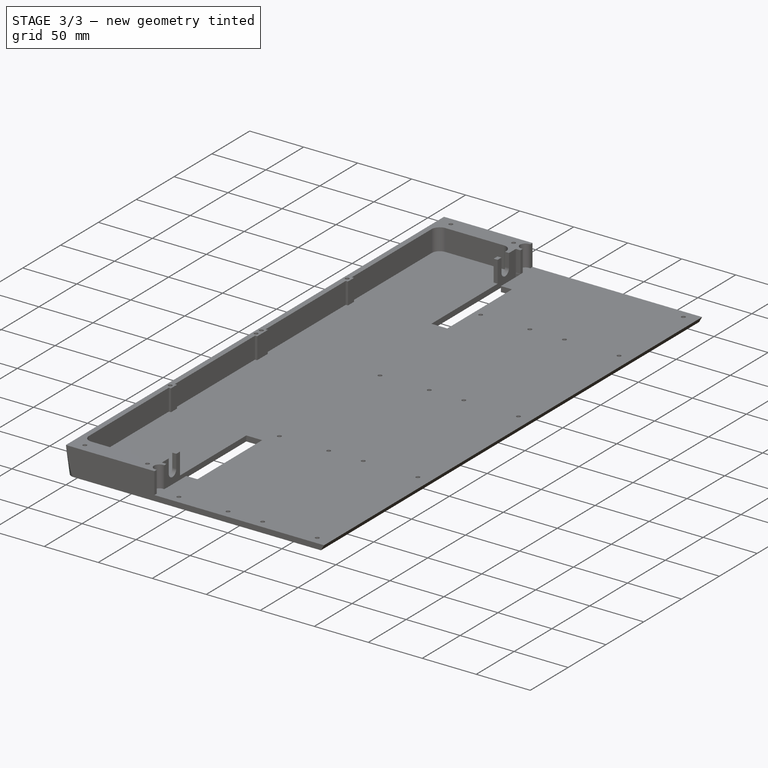
[diagram: stage 3 of 3 — iso view after this stage's code; geometry added in this stage tinted green]
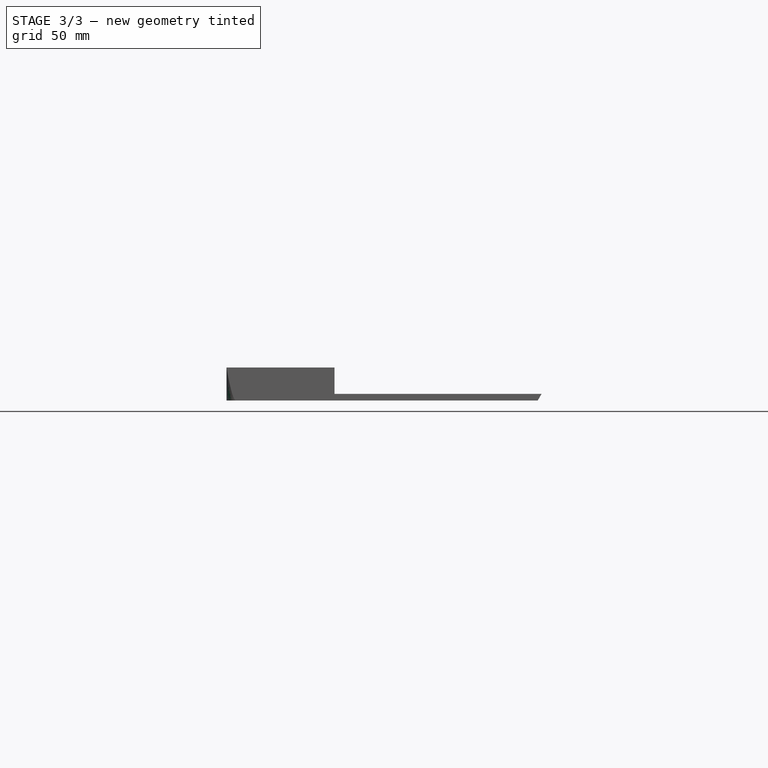
[diagram: stage 3 of 3 — front view after this stage's code; geometry added in this stage tinted green]
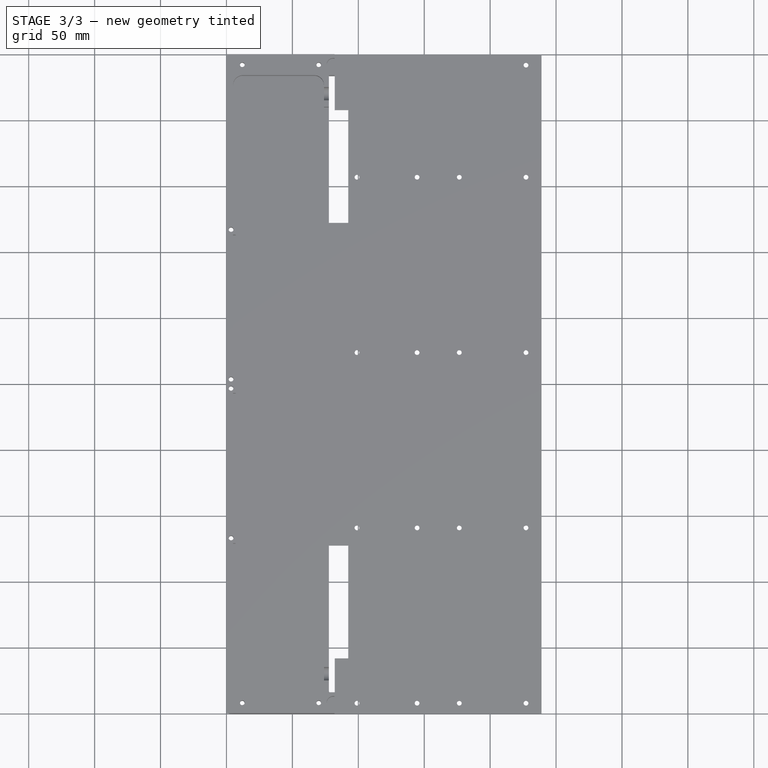
[diagram: stage 3 of 3 — top view after this stage's code; geometry added in this stage tinted green]
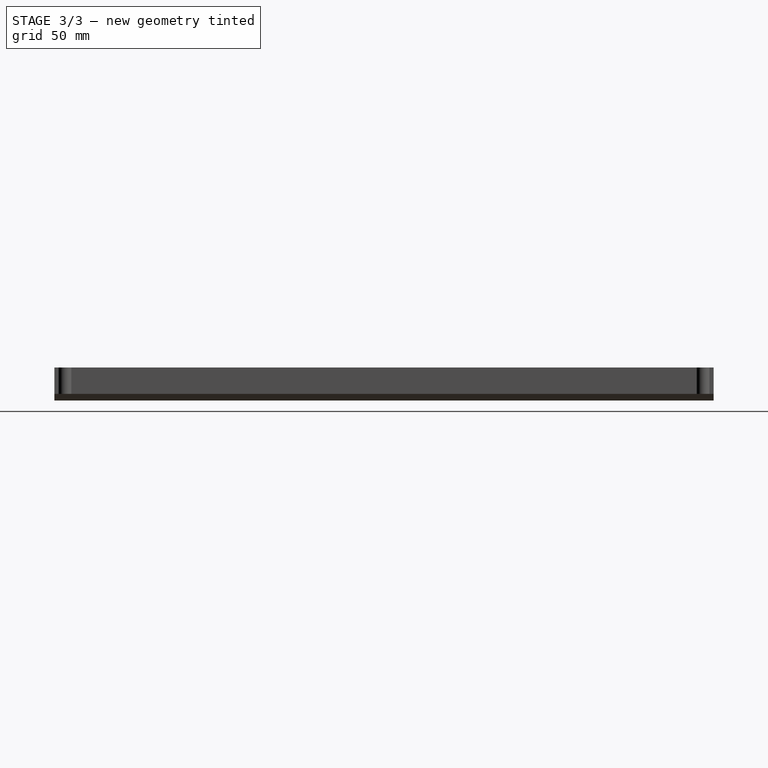
[diagram: stage 3 of 3 — right view after this stage's code; geometry added in this stage tinted green]
FEATURE [Sketcher::SketchObject] Sketch007
  FullyConstrained = false
  MapMode = 5
  Support = -> [XY_Plane]
  sketch-geometry (12):
    g0: LineSegment StartX=7.5 StartY=-2.7e-15 StartZ=0 EndX=252.941 EndY=-2.7e-15 EndZ=0
    g1: LineSegment StartX=252.941 StartY=-2.7e-15 StartZ=0 EndX=252.941 EndY=-500 EndZ=0
    g2: LineSegment StartX=252.941 StartY=-500 StartZ=0 EndX=7.5 EndY=-500 EndZ=0
    g3: LineSegment StartX=2.7e-15 StartY=-492.5 StartZ=0 EndX=2.7e-15 EndY=-7.5 EndZ=0
    g4: ArcOfCircle CenterX=7.5 CenterY=-492.5 CenterZ=0 NormalX=0 NormalY=0 NormalZ=1 AngleXU=0 Radius=7.5 StartAngle=3.14159 EndAngle=4.71239
    g5: GeomPoint X=0 Y=-500 Z=0
    g6: ArcOfCircle CenterX=7.5 CenterY=-7.5 CenterZ=0 NormalX=0 NormalY=0 NormalZ=1 AngleXU=0 Radius=7.5 StartAngle=1.5708 EndAngle=3.14159
    g7: GeomPoint X=0 Y=0 Z=0
    g8: LineSegment StartX=-59.6212 StartY=32.9892 StartZ=0 EndX=360.075 EndY=32.9892 EndZ=0
    g9: LineSegment StartX=360.075 StartY=32.9892 StartZ=0 EndX=360.075 EndY=-541.729 EndZ=0
    g10: LineSegment StartX=360.075 StartY=-541.729 StartZ=0 EndX=-59.6212 EndY=-541.729 EndZ=0
    g11: LineSegment StartX=-59.6212 StartY=-541.729 StartZ=0 EndX=-59.6212 EndY=32.9892 EndZ=0
  constraints (26):
    c: Coincident(g0,g1)
    c: Coincident(g1,g2)
    c: Horizontal(g0)
    c: Horizontal(g2)
    c: Vertical(g1)
    c: Vertical(g3)
    c: Coincident(g7,g-1)
    c: Distance(g1) = 500
    c: PointOnObject(g5,g2)
    c: PointOnObject(g5,g3)
    c: Tangent(g2,g4) = 1.5708
    c: Tangent(g3,g4) = 1.5708
    c: PointOnObject(g7,g3)
    c: PointOnObject(g7,g0)
    c: Tangent(g3,g6) = 1.5708
    c: Tangent(g0,g6) = 1.5708
    c: Equal(g6,g4)
    c: Diameter(g6) = 15
    c: Coincident(g8,g9)
    c: Coincident(g9,g10)
    c: Coincident(g10,g11)
    c: Coincident(g11,g8)
    c: Horizontal(g8)
    c: Horizontal(g10)
    c: Vertical(g9)
    c: Vertical(g11)
FEATURE [PartDesign::Pocket] Pocket006
  BaseFeature = -> Pocket005
  Direction = (0,0,-1)
  Length = 50
  Length2 = 5
  Midplane = true
  Placement = pos=(0,0,0) rot=(1,0,0;1.5708rad)
  Profile = -> Sketch007
  ReferenceAxis = -> Sketch007 [N_Axis]
  TaperAngle = -7
  Type = 0
FEATURE [PartDesign::Chamfer] Chamfer
  Angle = 45
  Base = -> Pocket006 [Edge61,Edge64,Edge79,Edge82,Edge84,Edge83,Edge85,Edge89,Edge86,Edge81,Edge80,Edge96,Edge97,Edge88,Edge77,Edge75,Edge68,Edge67,Edge63,Edge62,Edge65,Edge66,Edge76]
  BaseFeature = -> Pocket006
  ChamferType = 0
  FlipDirection = false
  Placement = pos=(0,0,0) rot=(1,0,0;1.5708rad)
  Size = 1.7
  Size2 = 1
  SupportTransform = false
  UseAllEdges = false
FEATURE [PartDesign::Pocket] Pocket007
  BaseFeature = -> Chamfer
  Direction = (0,0,-1)
  Length = 3
  Length2 = 5
  Placement = pos=(0,0,0) rot=(1,0,0;1.5708rad)
  Profile = -> Sketch004
  ReferenceAxis = -> Sketch004 [N_Axis]
  Reversed = true
  Type = 0
FEATURE [PartDesign::Body] Body
  Group = -> [Sketch,Pad,DatumPlane,Sketch001,Pocket,Sketch002,Pocket001,Sketch003,Pocket002,Sketch004,Sketch005,DatumPlane001,Sketch006,Pocket005,Sketch007,Pocket006,Chamfer,Pocket007]
  Origin = -> Origin
  Tip = -> Pocket007
FEATURE [App::Part] back_base
  Group = -> [LCS_0,Body]
  Origin = -> Origin001
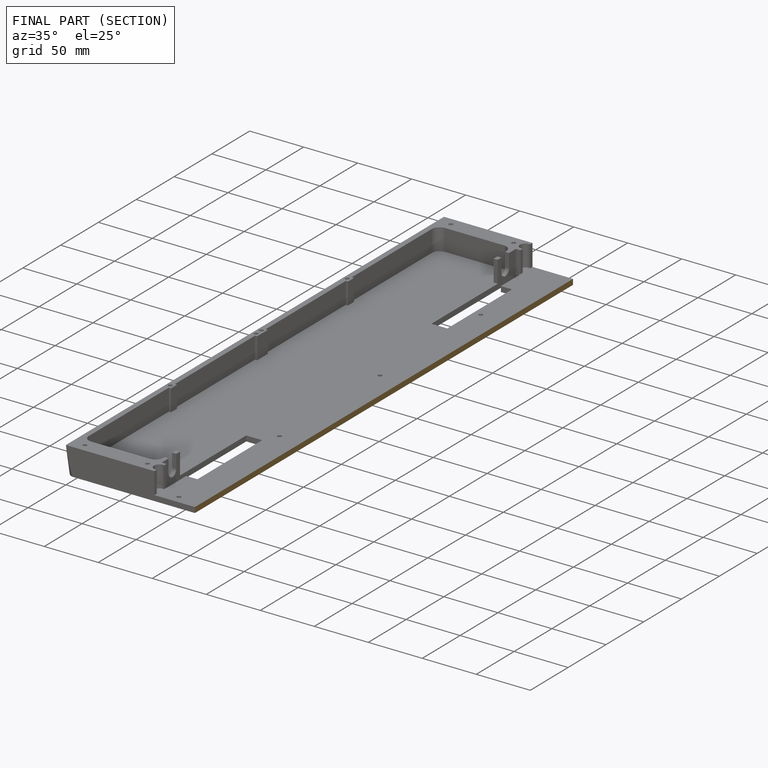
[diagram: finished part — half-section view (interior)]
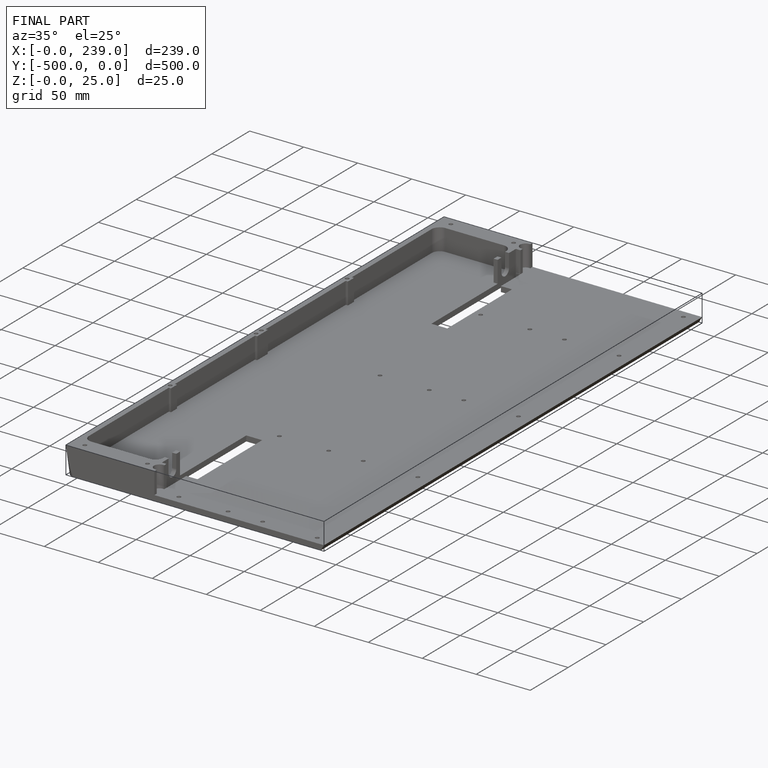
[diagram: finished part — iso view with bounding-box wireframe]
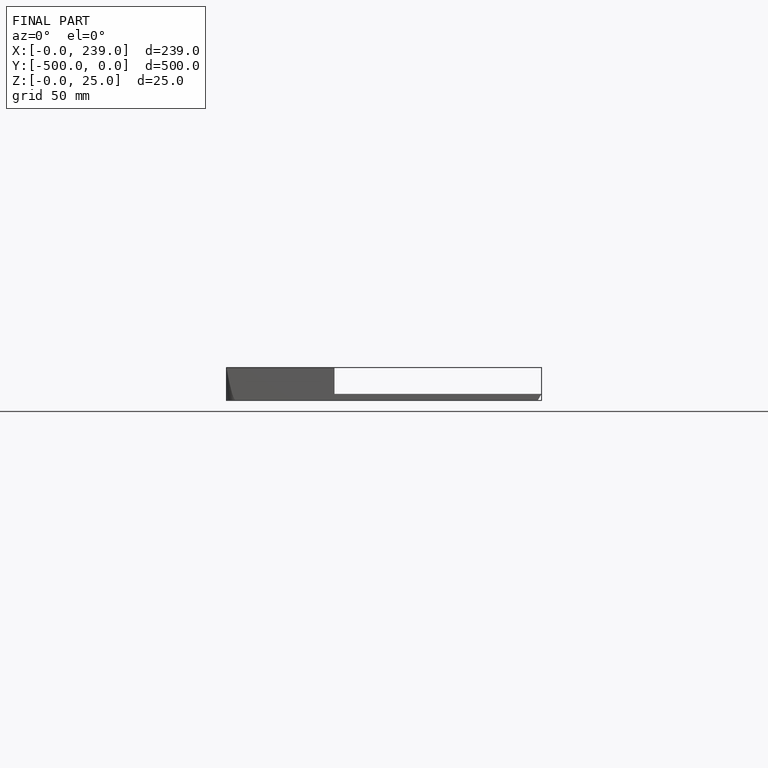
[diagram: finished part — front view with bounding-box wireframe]
